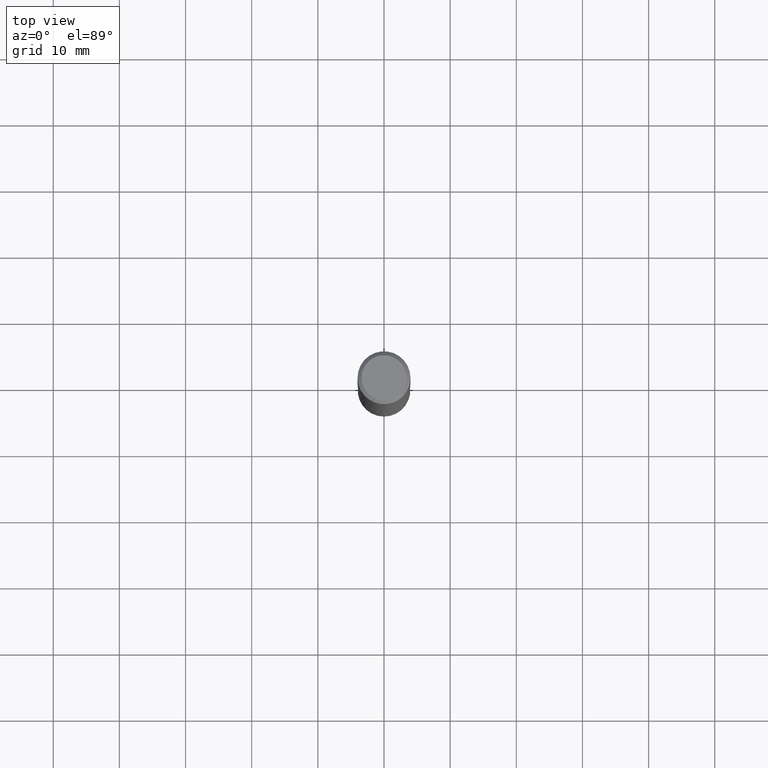
[diagram: clean part render]
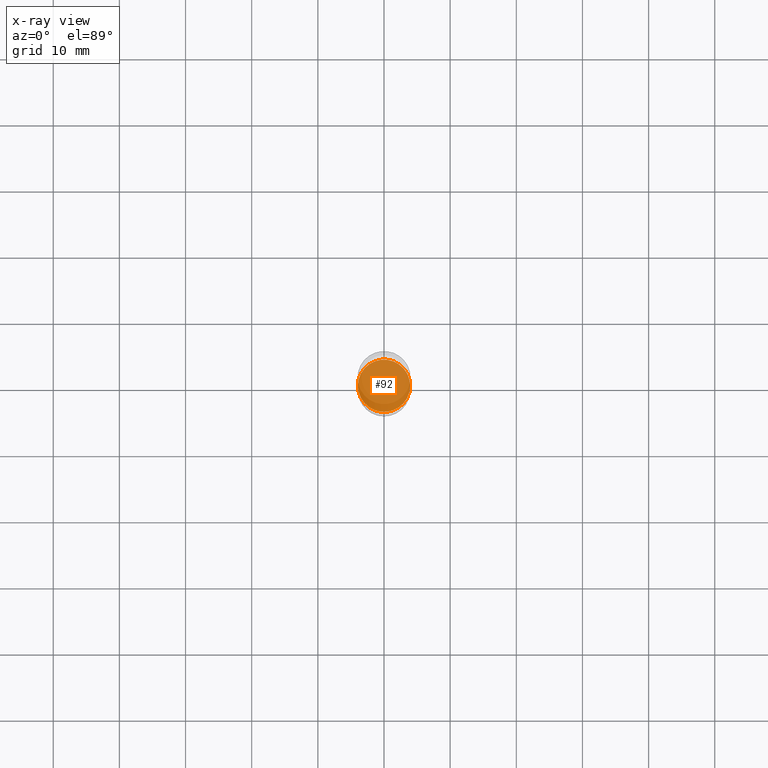
[diagram: x-ray — body ghosted, one internal face saturated and labeled with its STEP entity id]
A machine part, top view, then the same camera in x-ray: the body is ghosted and one INTERNAL B-rep face — a face not visible from any outside direction — is saturated and labeled: STEP entity #92.
In plain terms, the highlighted planar face has unit normal (-0, 0, 1).
Its self-contained STEP definition (entity closure, byte-faithful):
#19 = AXIS2_PLACEMENT_3D ( 'NONE', #232, #386, #64 ) ;
#33 = VERTEX_POINT ( 'NONE', #119 ) ;
#49 = CIRCLE ( 'NONE', #419, 0.1557499999999999996 ) ;
#52 = EDGE_CURVE ( 'NONE', #33, #221, #49, .T. ) ;
#64 = DIRECTION ( 'NONE',  ( 1.000000000000000000, -6.982962677686265922E-15, 0.000000000000000000 ) ) ;
#88 = DIRECTION ( 'NONE',  ( -2.445468806185136597E-29, 3.491481338843145583E-15, 1.000000000000000000 ) ) ;
#92 = ADVANCED_FACE ( 'NONE', ( #99 ), #98, .F. ) ;
#95 = CARTESIAN_POINT ( 'NONE',  ( -1.167599102187429524E-31, -1.970141480086787471E-14, -2.814700000000001090 ) ) ;
#98 = PLANE ( 'NONE',  #177 ) ;
#99 = FACE_OUTER_BOUND ( 'NONE', #364, .T. ) ;
#102 = CIRCLE ( 'NONE', #19, 0.1557499999999999996 ) ;
#119 = CARTESIAN_POINT ( 'NONE',  ( -0.1557499999999999996, -8.718152986321335833E-15, -2.814700000000001090 ) ) ;
#167 = DIRECTION ( 'NONE',  ( 1.000000000000000000, -6.982962677686265922E-15, 4.876176775795935793E-29 ) ) ;
#177 = AXIS2_PLACEMENT_3D ( 'NONE', #95, #267, #167 ) ;
#193 = DIRECTION ( 'NONE',  ( 1.000000000000000000, -6.982962677686265922E-15, 0.000000000000000000 ) ) ;
#221 = VERTEX_POINT ( 'NONE', #380 ) ;
#232 = CARTESIAN_POINT ( 'NONE',  ( 6.883261048769305453E-29, -9.827472524441804254E-15, -2.814700000000001090 ) ) ;
#233 = EDGE_CURVE ( 'NONE', #221, #33, #102, .T. ) ;
#267 = DIRECTION ( 'NONE',  ( -2.438088387897960049E-29, 3.491481338843145188E-15, 1.000000000000000000 ) ) ;
#340 = ORIENTED_EDGE ( 'NONE', *, *, #52, .F. ) ;
#364 = EDGE_LOOP ( 'NONE', ( #371, #340 ) ) ;
#371 = ORIENTED_EDGE ( 'NONE', *, *, #233, .F. ) ;
#380 = CARTESIAN_POINT ( 'NONE',  ( 0.1557499999999999996, -1.091506896149144121E-14, -2.814700000000001090 ) ) ;
#386 = DIRECTION ( 'NONE',  ( -2.445468806185136597E-29, 3.491481338843145583E-15, 1.000000000000000000 ) ) ;
#419 = AXIS2_PLACEMENT_3D ( 'NONE', #444, #88, #193 ) ;
#444 = CARTESIAN_POINT ( 'NONE',  ( 6.883261048769305453E-29, -9.827472524441804254E-15, -2.814700000000001090 ) ) ;